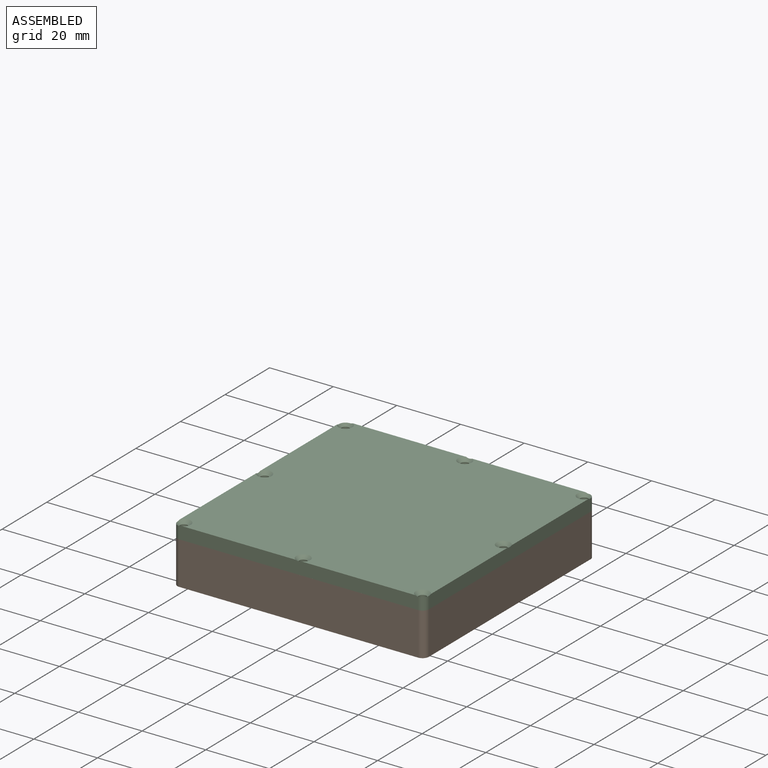
[diagram: assembled view]
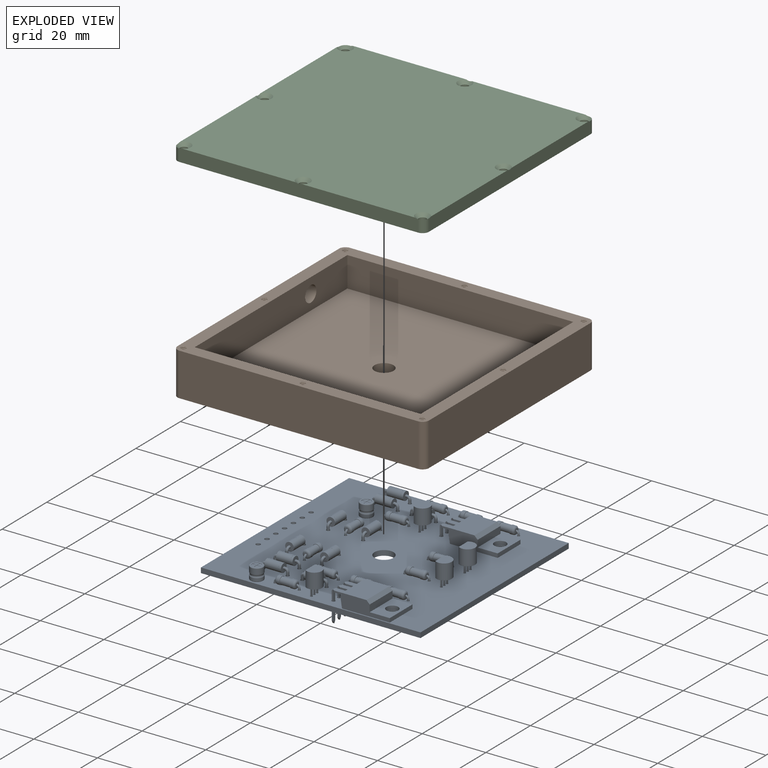
[diagram: exploded view]
GUIDED TOUR — FREECAD ASSEMBLY "case-v2"

This assembly has 3 components, labeled P0..P2 below (a component is one placed body or linked part; the same part can appear more than once), held together by 0 modeled joints plus 2 derived contact edges. A joint is a constraint between two components; its type names the relative motion it leaves free:
  CONTACT — a derived adjacency edge — the two components touch in the source model (clearance under 2% of the assembly's diagonal); it is measured from the geometry, not a modeled constraint.
Axis/direction vectors are unit vectors and 'through' points are millimeter coordinates, both in the assembly's world frame.

MATES
  1. CONTACT "contact_0_1": P0 <-> P1, contact direction (0.000, 0.000, 1.000) through (2.29, -1.82, -0.55) mm (derived from contact, not a modeled constraint)
  2. CONTACT "contact_1_2": P1 <-> P2, contact direction (0.000, 0.000, 1.000) through (-39.50, 36.25, 9.50) mm (derived from contact, not a modeled constraint)

ASSEMBLY ORDER
  1. P0 — the base component [order verified]
  2. P1 [order verified]
  3. P2 [order verified]
Order-tag legend:
  [order verified] — this step's position reverses a verified removal order: the component was checked to insert without passing through the ones already placed.

Of the 3 components, 2 carry a construction recipe — the FreeCAD feature program (sketches with constraints, then the solid features that consume them) that regenerates the part from scratch, quoted from this document or from the linked companion document it references; the rest are supplied as boundary geometry only. The tour below walks the components in assembly order: each is shown spotlighted twice — in the assembled view, then in the exploded view, where a leader line traces a displaced component back to its assembled socket (components that stay in place when exploded have no leader line; saturated green if recipe-attached, orange if geometry-only; every other component desaturated gray) — followed by its recipe or geometry summary and the mates that hold it.
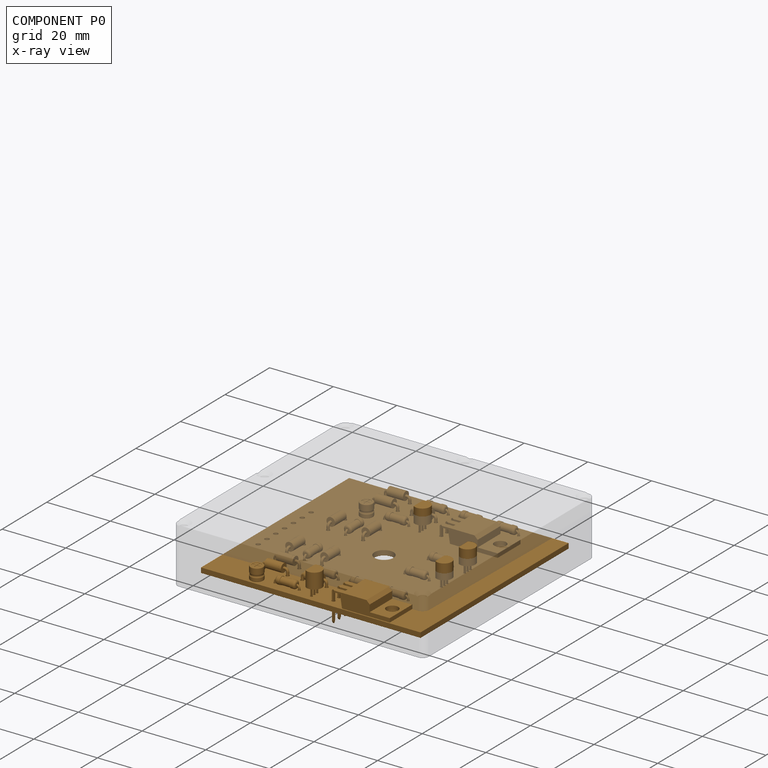
[diagram: component P0 — x-ray view]
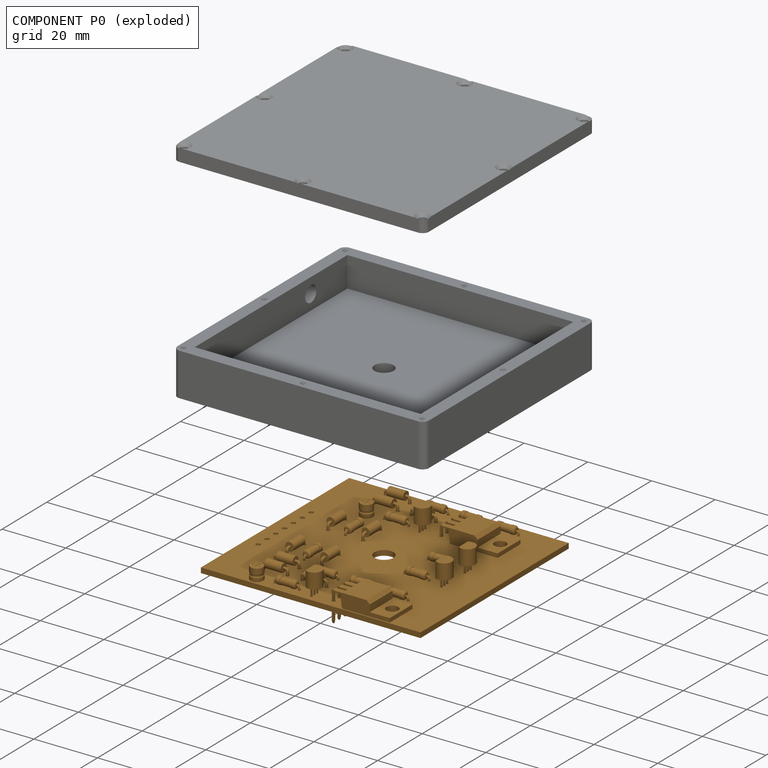
[diagram: component P0 — exploded]
COMPONENT P0 — geometry summary ("side-markers-blinker"; no construction recipe available for this part):
  bounding box: 69.0 x 66.5 x 13.6 mm
  tessellated surface: 434,292 triangles
  volume: 7983 mm^3 (13% of its bounding box)
Held by: resting contact with P1 (derived edge).
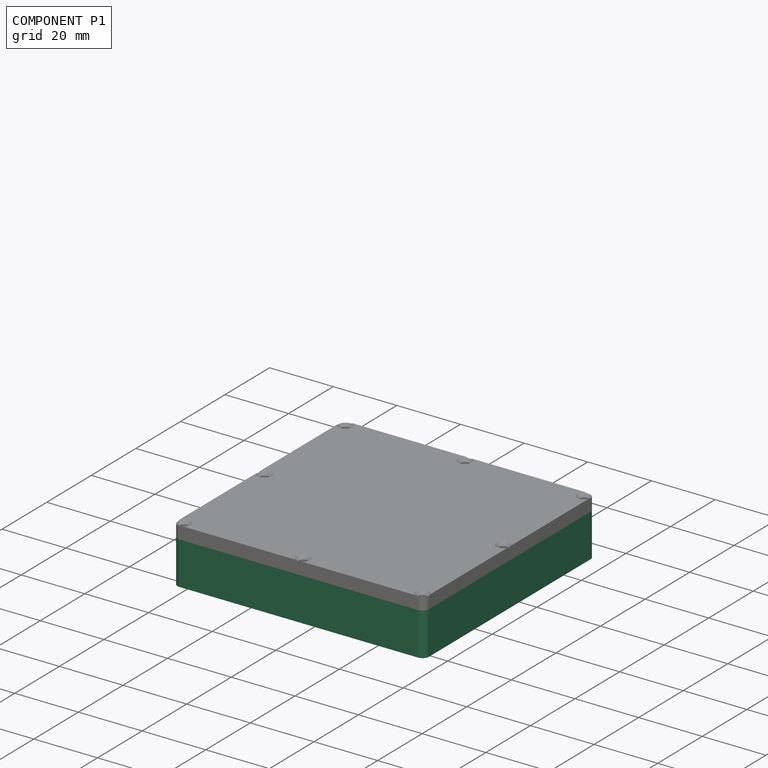
[diagram: component P1 — assembled]
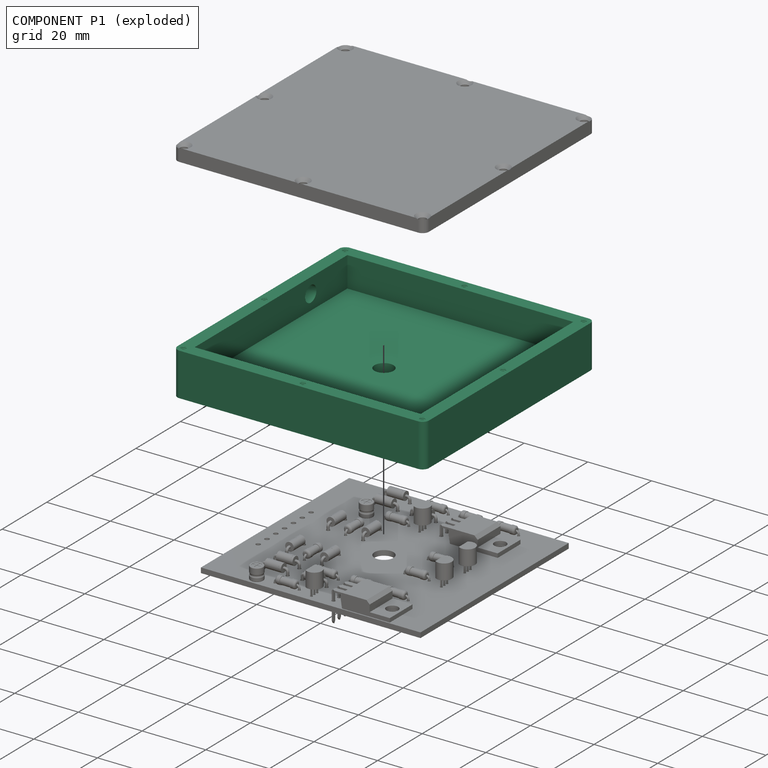
[diagram: component P1 — exploded]
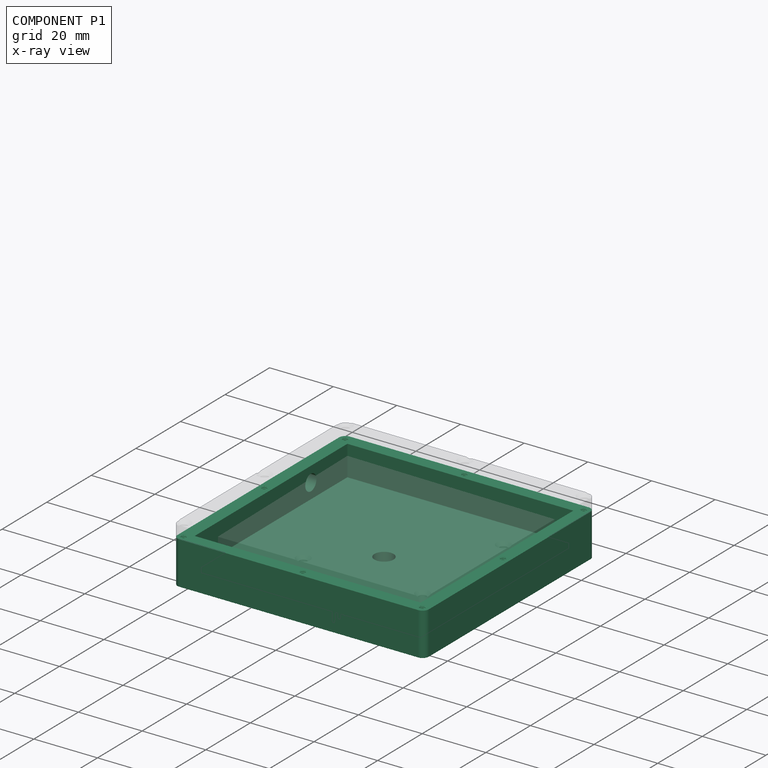
[diagram: component P1 — x-ray view]
COMPONENT P1 — recipe-attached ("Base", modeled in this document).
Held by: resting contact with P0 (derived edge); resting contact with P2 (derived edge).
Construction recipe (the document's own serialized feature program — sketch geometry with constraints, then the solid features built on it; lengths are millimeters unless a unit is written):

FEATURE [Sketcher::SketchObject] Sketch
  FullyConstrained = true
  MapMode = 5
  Support = -> [XY_Plane]
  expr: Constraints[8] = Spreadsheet.pcb_length + Spreadsheet.clearance * 2
  expr: Constraints[9] = Spreadsheet.pcb_width + Spreadsheet.clearance * 2
  sketch-geometry (4):
    g0: LineSegment StartX=-35.5 StartY=34.25 StartZ=0 EndX=35.5 EndY=34.25 EndZ=0
    g1: LineSegment StartX=35.5 StartY=34.25 StartZ=0 EndX=35.5 EndY=-34.25 EndZ=0
    g2: LineSegment StartX=35.5 StartY=-34.25 StartZ=0 EndX=-35.5 EndY=-34.25 EndZ=0
    g3: LineSegment StartX=-35.5 StartY=-34.25 StartZ=0 EndX=-35.5 EndY=34.25 EndZ=0
  constraints (10):
    c: Coincident(g0,g1)
    c: Coincident(g1,g2)
    c: Coincident(g2,g3)
    c: Coincident(g3,g0)
    c: Horizontal(g2)
    c: Vertical(g3)
    c: Symmetric(g0,g0,g-2)
    c: Symmetric(g0,g1,g-1)
    c: DistanceX(g0,g0) = 71
    c: DistanceY(g1,g0) = 68.5
FEATURE [PartDesign::Pad] Pad
  Direction = (0,0,1)
  Length = 9.5
  Length2 = 10
  Profile = -> Sketch
  ReferenceAxis = -> Sketch [N_Axis]
  Type = 0
  expr: Length = Spreadsheet.wall_tickness + Spreadsheet.bottom_component_height + Spreadsheet.top_component_height
FEATURE [PartDesign::Thickness] Thickness
  Base = -> Pad [Face6]
  BaseFeature = -> Pad
  Intersection = false
  Join = 1
  Mode = 0
  SupportTransform = false
  Value = 4
  expr: Value = Spreadsheet.wall_tickness
FEATURE [PartDesign::Fillet] Fillet
  Base = -> Thickness [Edge18,Edge17,Edge22,Edge20]
  BaseFeature = -> Thickness
  Radius = 2
  SupportTransform = false
  UseAllEdges = false
FEATURE [Sketcher::SketchObject] Sketch001
  ExternalGeometry = -> [Fillet]
  FullyConstrained = true
  MapMode = 5
  Placement = pos=(0,0,9.5) rot=(0,0,1;0rad)
  Support = -> [Fillet]
  expr: Constraints[0] = Spreadsheet.screw_hole
  expr: Constraints[15] = (Spreadsheet.pcb_width + Spreadsheet.wall_tickness + Spreadsheet.clearance * 2) / 2
  expr: Constraints[16] = (Spreadsheet.pcb_length + Spreadsheet.wall_tickness + Spreadsheet.clearance * 2) / 2
  expr: Constraints[17] = (Spreadsheet.pcb_length + Spreadsheet.wall_tickness + Spreadsheet.clearance * 2) / 2
  expr: Constraints[18] = (Spreadsheet.pcb_width + Spreadsheet.wall_tickness + Spreadsheet.clearance * 2) / 2
  sketch-geometry (8):
    g0: Circle CenterX=-37.5 CenterY=36.25 CenterZ=0 NormalX=0 NormalY=0 NormalZ=1 AngleXU=0 Radius=0.5
    g1: Circle CenterX=0 CenterY=36.25 CenterZ=0 NormalX=0 NormalY=0 NormalZ=1 AngleXU=0 Radius=0.5
    g2: Circle CenterX=37.5 CenterY=36.25 CenterZ=0 NormalX=0 NormalY=0 NormalZ=1 AngleXU=0 Radius=0.5
    g3: Circle CenterX=37.5 CenterY=0 CenterZ=0 NormalX=0 NormalY=0 NormalZ=1 AngleXU=0 Radius=0.5
    g4: Circle CenterX=37.5 CenterY=-36.25 CenterZ=0 NormalX=0 NormalY=0 NormalZ=1 AngleXU=0 Radius=0.5
    g5: Circle CenterX=0 CenterY=-36.25 CenterZ=0 NormalX=0 NormalY=0 NormalZ=1 AngleXU=0 Radius=0.5
    g6: Circle CenterX=-37.5 CenterY=-36.25 CenterZ=0 NormalX=0 NormalY=0 NormalZ=1 AngleXU=0 Radius=0.5
    g7: Circle CenterX=-37.5 CenterY=0 CenterZ=0 NormalX=0 NormalY=0 NormalZ=1 AngleXU=0 Radius=0.5
  constraints (19):
    c: Diameter(g0) = 1
    c: Equal(g0,g1)
    c: Equal(g1,g2)
    c: Equal(g2,g3)
    c: Equal(g3,g4)
    c: Equal(g4,g5)
    c: Equal(g5,g6)
    c: Equal(g6,g7)
    c: PointOnObject(g1,g-2)
    c: PointOnObject(g3,g-1)
    c: Symmetric(g5,g1,g-1)
    c: Symmetric(g7,g3,g-2)
    c: Symmetric(g0,g2,g-2)
    c: Symmetric(g2,g4,g-1)
    c: Symmetric(g4,g6,g-2)
    c: DistanceY(g-1,g1) = 36.25
    c: DistanceX(g7,g-1) = 37.5
    c: DistanceX(g0,g1) = 37.5
    c: DistanceY(g7,g0) = 36.25
FEATURE [PartDesign::Hole] Hole
  BaseFeature = -> Fillet
  CustomThreadClearance = 0
  Depth = 6
  DepthType = 0
  Diameter = 1.619
  DrillForDepth = false
  DrillPoint = 1
  DrillPointAngle = 118
  HoleCutCountersinkAngle = 90
  HoleCutCustomValues = false
  HoleCutDepth = 0
  HoleCutDiameter = 3.2
  HoleCutType = 0
  ModelThread = true
  Profile = -> Sketch001
  Tapered = false
  TaperedAngle = 90
  ThreadClass = 0
  ThreadDepth = 6
  ThreadDepthType = 0
  ThreadDirection = 0
  ThreadFit = 0
  ThreadSize = 6
  ThreadType = 1
  Threaded = true
  UseCustomThreadClearance = false
  expr: Depth = Spreadsheet.screw_length - Spreadsheet.wall_tickness
FEATURE [Sketcher::SketchObject] Sketch002
  FullyConstrained = true
  MapMode = 5
  Placement = pos=(-39.5,0,0) rot=(0.57735,-0.57735,-0.57735;2.0944rad)
  Support = -> [Hole]
  expr: Constraints[0] = (Spreadsheet.wall_tickness + Spreadsheet.top_component_height + Spreadsheet.bottom_component_height) / 2
  expr: Constraints[1] = (Spreadsheet.pcb_width + Spreadsheet.wall_tickness + Spreadsheet.clearance) / 4
  expr: Constraints[2] = Spreadsheet.wire_hole
  sketch-geometry (1):
    g0: Circle CenterX=-17.875 CenterY=4.75 CenterZ=0 NormalX=0 NormalY=0 NormalZ=1 AngleXU=0 Radius=2.5
  constraints (3):
    c: DistanceY(g-1,g0) = 4.75
    c: DistanceX(g0,g-1) = 17.875
    c: Diameter(g0) = 5
FEATURE [PartDesign::Hole] Hole001
  BaseFeature = -> Hole
  CustomThreadClearance = 0
  Depth = 4
  DepthType = 0
  Diameter = 5
  DrillForDepth = false
  DrillPoint = 1
  DrillPointAngle = 118
  HoleCutCountersinkAngle = 90
  HoleCutCustomValues = false
  HoleCutDepth = 0
  HoleCutDiameter = 10.1
  HoleCutType = 0
  ModelThread = false
  Profile = -> Sketch002
  Tapered = false
  TaperedAngle = 90
  ThreadClass = 0
  ThreadDepth = 4
  ThreadDepthType = 0
  ThreadDirection = 0
  ThreadFit = 0
  ThreadSize = 0
  ThreadType = 0
  Threaded = false
  UseCustomThreadClearance = false
  expr: Depth = Spreadsheet.wall_tickness
  expr: Diameter = Spreadsheet.wire_hole
FEATURE [Sketcher::SketchObject] Sketch006
  FullyConstrained = true
  MapMode = 5
  Support = -> [XY_Plane]
  expr: Constraints[1] = Spreadsheet.mount_hole
  sketch-geometry (1):
    g0: Circle CenterX=0 CenterY=0 CenterZ=0 NormalX=0 NormalY=0 NormalZ=1 AngleXU=0 Radius=3
  constraints (2):
    c: Coincident(g0,g-1)
    c: Diameter(g0) = 6
FEATURE [PartDesign::Hole] Hole005
  BaseFeature = -> Hole001
  CustomThreadClearance = 0
  Depth = 4
  DepthType = 0
  Diameter = 6
  DrillForDepth = false
  DrillPoint = 1
  DrillPointAngle = 118
  HoleCutCountersinkAngle = 90
  HoleCutCustomValues = false
  HoleCutDepth = 0
  HoleCutDiameter = 6.1
  HoleCutType = 0
  ModelThread = false
  Profile = -> Sketch006
  Tapered = false
  TaperedAngle = 90
  ThreadClass = 0
  ThreadDepth = 4
  ThreadDepthType = 0
  ThreadDirection = 0
  ThreadFit = 0
  ThreadSize = 0
  ThreadType = 0
  Threaded = false
  UseCustomThreadClearance = false
  expr: Depth = Spreadsheet.wall_tickness
  expr: Diameter = Spreadsheet.mount_hole
FEATURE [PartDesign::Body] Body  label="Base"
  Group = -> [Sketch,Pad,Thickness,Fillet,Sketch001,Hole,Sketch002,Hole001,Sketch006,Hole005]
  Origin = -> Origin
  Tip = -> Hole005
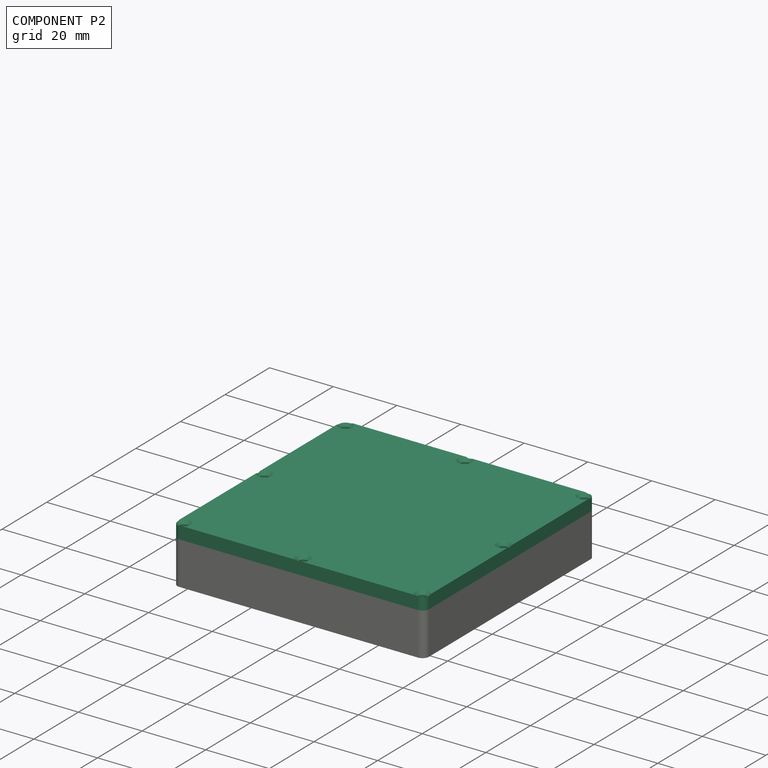
[diagram: component P2 — assembled]
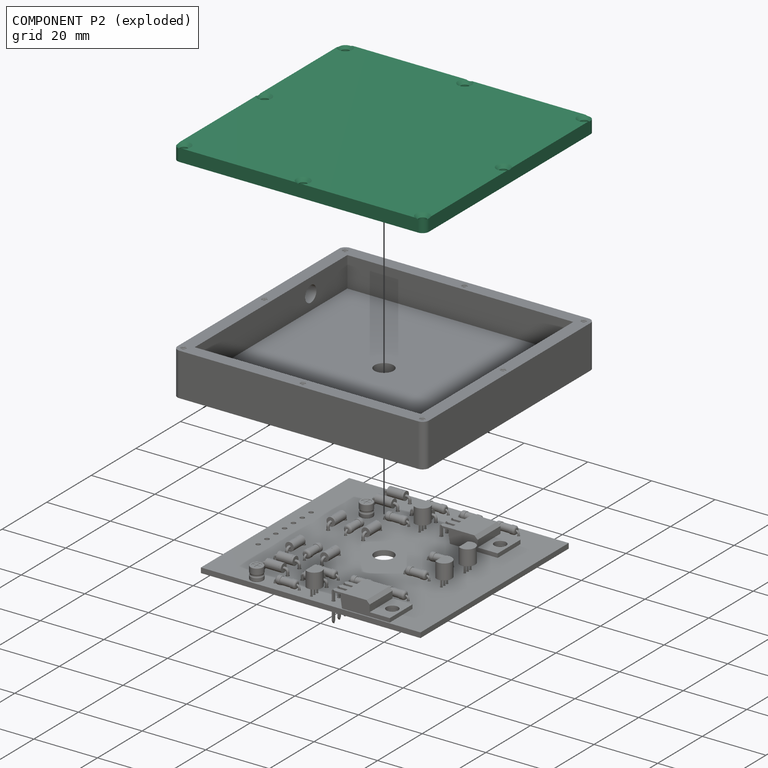
[diagram: component P2 — exploded]
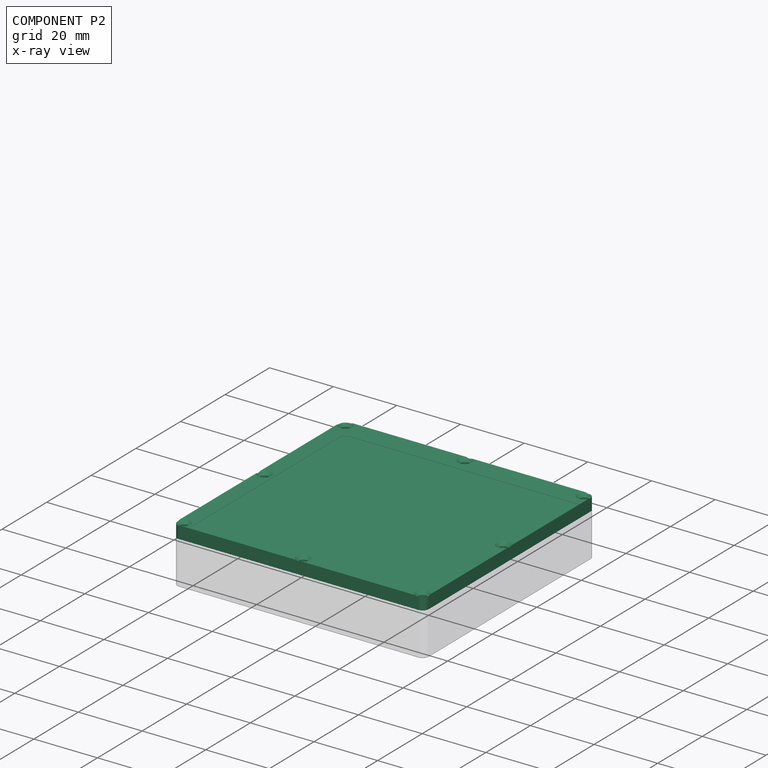
[diagram: component P2 — x-ray view]
COMPONENT P2 — recipe-attached ("Cover", modeled in this document).
Held by: resting contact with P1 (derived edge).
Construction recipe (the document's own serialized feature program — sketch geometry with constraints, then the solid features built on it; lengths are millimeters unless a unit is written):

FEATURE [PartDesign::ShapeBinder] ShapeBinder
  Support = -> [Hole005]
  TraceSupport = false
FEATURE [PartDesign::Pad] Pad001
  Direction = (0,0,1)
  Length = 4
  Length2 = 10
  Profile = -> ShapeBinder
  Type = 0
  expr: Length = Spreadsheet.wall_tickness
FEATURE [Sketcher::SketchObject] Sketch005
  ExternalGeometry = -> [Pad001]
  FullyConstrained = true
  MapMode = 5
  Placement = pos=(0,0,13.5) rot=(0,0,1;0rad)
  Support = -> [Pad001]
  expr: Constraints[15] = (Spreadsheet.pcb_length + Spreadsheet.wall_tickness + Spreadsheet.clearance * 2) / 2
  expr: Constraints[16] = (Spreadsheet.pcb_width + Spreadsheet.wall_tickness + Spreadsheet.clearance * 2) / 2
  expr: Constraints[17] = Spreadsheet.wall_tickness / 2
  expr: Constraints[18] = Spreadsheet.wall_tickness / 2
  expr: Constraints[2] = Spreadsheet.screw_hole
  sketch-geometry (8):
    g0: Circle CenterX=-37.5 CenterY=36.25 CenterZ=0 NormalX=0 NormalY=0 NormalZ=1 AngleXU=0 Radius=0.5
    g1: Circle CenterX=0 CenterY=36.25 CenterZ=0 NormalX=0 NormalY=0 NormalZ=1 AngleXU=0 Radius=0.5
    g2: Circle CenterX=37.5 CenterY=36.25 CenterZ=0 NormalX=0 NormalY=0 NormalZ=1 AngleXU=0 Radius=0.5
    g3: Circle CenterX=37.5 CenterY=0 CenterZ=0 NormalX=0 NormalY=0 NormalZ=1 AngleXU=0 Radius=0.5
    g4: Circle CenterX=37.5 CenterY=-36.25 CenterZ=0 NormalX=0 NormalY=0 NormalZ=1 AngleXU=0 Radius=0.5
    g5: Circle CenterX=0 CenterY=-36.25 CenterZ=0 NormalX=0 NormalY=0 NormalZ=1 AngleXU=0 Radius=0.5
    g6: Circle CenterX=-37.5 CenterY=-36.25 CenterZ=0 NormalX=0 NormalY=0 NormalZ=1 AngleXU=0 Radius=0.5
    g7: Circle CenterX=-37.5 CenterY=0 CenterZ=0 NormalX=0 NormalY=0 NormalZ=1 AngleXU=0 Radius=0.5
  constraints (19):
    c: PointOnObject(g1,g-2)
    c: PointOnObject(g3,g-1)
    c: Diameter(g0) = 1
    c: Equal(g0,g1)
    c: Equal(g1,g2)
    c: Equal(g2,g3)
    c: Equal(g3,g4)
    c: Equal(g4,g5)
    c: Equal(g5,g6)
    c: Equal(g6,g7)
    c: Symmetric(g0,g2,g-2)
    c: Symmetric(g4,g2,g-1)
    c: Symmetric(g6,g4,g-2)
    c: Symmetric(g7,g3,g-2)
    c: Symmetric(g1,g5,g-1)
    c: DistanceX(g7,g-1) = 37.5
    c: DistanceY(g-1,g1) = 36.25
    c: DistanceY(g-4,g6) = 2
    c: DistanceX(g-3,g6) = 2
FEATURE [PartDesign::Hole] Hole004
  BaseFeature = -> Pad001
  CustomThreadClearance = 0
  Depth = 4
  DepthType = 0
  Diameter = 2.4
  DrillForDepth = false
  DrillPoint = 1
  DrillPointAngle = 118
  HoleCutCountersinkAngle = 90
  HoleCutCustomValues = false
  HoleCutDepth = 0
  HoleCutDiameter = 4.4
  HoleCutType = 13
  ModelThread = false
  Profile = -> Sketch005
  Tapered = false
  TaperedAngle = 90
  ThreadClass = 0
  ThreadDepth = 4
  ThreadDepthType = 0
  ThreadDirection = 0
  ThreadFit = 0
  ThreadSize = 6
  ThreadType = 1
  Threaded = false
  UseCustomThreadClearance = false
  expr: Depth = Spreadsheet.wall_tickness
  expr: Diameter = 1
FEATURE [PartDesign::Body] Body001  label="Cover"
  Group = -> [ShapeBinder,Pad001,Sketch005,Hole004]
  Origin = -> Origin005
  Tip = -> Hole004
PROVENANCE & LICENSES
Assembly and component geometry: a FreeCAD (.FCStd) document from a public repository crawl; components, placements and joints were extracted with FreeCAD and each solid tessellated.
Construction recipes: the document's own serialized feature recipes (and, for linked parts, the recipes of companion documents from the same project).
License: gpl-3.0.
Joints: native FreeCAD joints and A2plus constraints are mapped to standard mate types; edges marked 'derived from contact' connect touching components and are measured from the geometry, not modeled.
Verification: 2 of this assembly's 3 components carry a construction recipe (2 from this document itself); the rest are geometry-only. Every component's tessellation passed the extraction mesh gates (mesh-volume checksum against the B-rep where available, bounding-box inflation <= 2%).
Renders: orthographic iso camera (az 35 / el 25); the floor grid conveys scale (grid pitch printed in each image; no ruler). In the exploded view each component is displaced by its stored offset vector: the offsets alone carry the explosion direction (mate normal/axis signs are not orientation cues and do not encode it), and separation distances are assigned per mate-chain, not proportionally to assembly-order depth.
